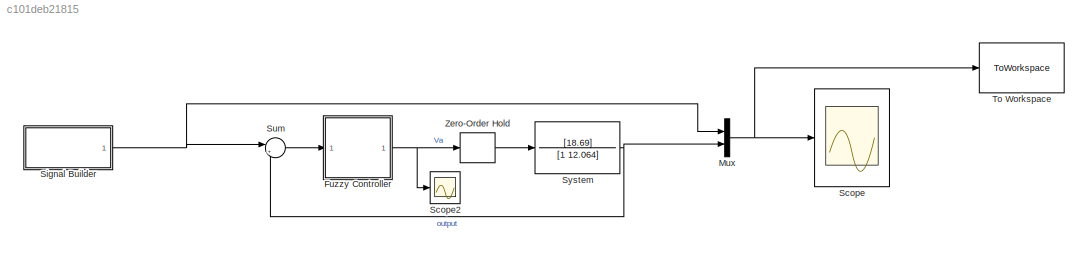
MODEL slx_c101deb21815
KIND model
CONFIG AbsTol = auto
CONFIG EnableMultiTasking = on
CONFIG FixedStep = 0.01
CONFIG MaxStep = auto
CONFIG MinStep = auto
CONFIG RelTol = 1e-3
CONFIG SampleTimeConstraint = Unconstrained
CONFIG Solver = ode3
CONFIG SolverName = ode3
CONFIG StartTime = 0.0
CONFIG StopTime = 35
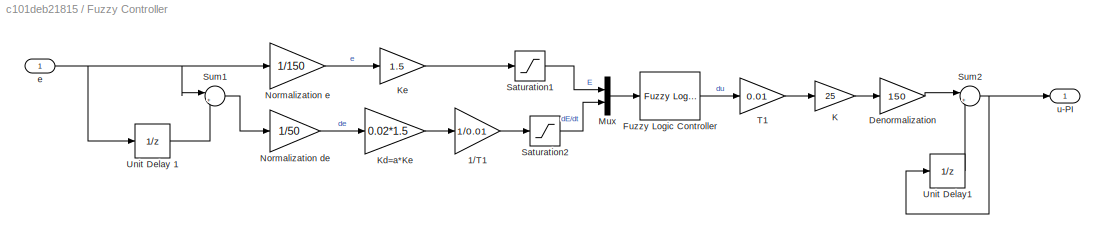
BLOCK [SubSystem] Fuzzy Controller
  Ports = [1, 1]
  RequestExecContextInheritance = off
BLOCK [Gain] Fuzzy Controller/1//T1
  Gain = 1/0.01
  OutDataTypeStr = Inherit: Inherit via internal rule
  ParamDataTypeStr = Inherit: Inherit via internal rule
  SaturateOnIntegerOverflow = off
BLOCK [Gain] Fuzzy Controller/Denormalization
  Gain = 150
  OutDataTypeStr = Inherit: Inherit via internal rule
  ParamDataTypeStr = Inherit: Inherit via internal rule
  SaturateOnIntegerOverflow = off
BLOCK [Reference] Fuzzy Controller/Fuzzy Logic Controller  REF=fuzblock/Fuzzy Logic   (lib defined in mdl_858b3b3e7478)
Controller
  Ports = [1, 1]
  SourceBlock = fuzblock/Fuzzy Logic \nController
  SourceProductBaseCode = FL
  SourceProductName = Fuzzy Logic Toolbox
  SourceType = Fuzzy Inference System
BLOCK [Gain] Fuzzy Controller/K
  Gain = 25
  OutDataTypeStr = Inherit: Inherit via internal rule
  ParamDataTypeStr = Inherit: Inherit via internal rule
  SaturateOnIntegerOverflow = off
BLOCK [Gain] Fuzzy Controller/Kd=a*Ke
  Gain = 0.02*1.5
  OutDataTypeStr = Inherit: Inherit via internal rule
  ParamDataTypeStr = Inherit: Inherit via internal rule
  SaturateOnIntegerOverflow = off
BLOCK [Gain] Fuzzy Controller/Ke
  Gain = 1.5
  OutDataTypeStr = Inherit: Inherit via internal rule
  ParamDataTypeStr = Inherit: Inherit via internal rule
  SaturateOnIntegerOverflow = off
BLOCK [Mux] Fuzzy Controller/Mux
  DisplayOption = bar
  Inputs = 2
  Ports = [2, 1]
BLOCK [Gain] Fuzzy Controller/Normalization de
  Gain = 1/50
  OutDataTypeStr = Inherit: Inherit via internal rule
  ParamDataTypeStr = Inherit: Inherit via internal rule
  SaturateOnIntegerOverflow = off
BLOCK [Gain] Fuzzy Controller/Normalization e
  Gain = 1/150
  OutDataTypeStr = Inherit: Inherit via internal rule
  ParamDataTypeStr = Inherit: Inherit via internal rule
  SaturateOnIntegerOverflow = off
BLOCK [Saturate] Fuzzy Controller/Saturation1
  InputPortMap = u0
  LowerLimit = -1
  Ports = [1, 1]
  UpperLimit = 1
BLOCK [Saturate] Fuzzy Controller/Saturation2
  InputPortMap = u0
  LowerLimit = -1
  Ports = [1, 1]
  UpperLimit = 1
BLOCK [Sum] Fuzzy Controller/Sum1
  IconShape = round
  InputSameDT = off
  Inputs = |+-
  OutDataTypeStr = Inherit: Inherit via internal rule
  Ports = [2, 1]
  SaturateOnIntegerOverflow = off
BLOCK [Sum] Fuzzy Controller/Sum2
  IconShape = round
  InputSameDT = off
  Inputs = |++
  OutDataTypeStr = Inherit: Inherit via internal rule
  Ports = [2, 1]
  SaturateOnIntegerOverflow = off
BLOCK [Gain] Fuzzy Controller/T1
  Gain = 0.01
  OutDataTypeStr = Inherit: Inherit via internal rule
  ParamDataTypeStr = Inherit: Inherit via internal rule
  SaturateOnIntegerOverflow = off
BLOCK [UnitDelay] Fuzzy Controller/Unit Delay 1
  InputProcessing = Elements as channels (sample based)
  SampleTime = -1
BLOCK [UnitDelay] Fuzzy Controller/Unit Delay1
  InputProcessing = Elements as channels (sample based)
  SampleTime = -1
BLOCK [Inport] Fuzzy Controller/e
  IconDisplay = Port number
BLOCK [Outport] Fuzzy Controller/u-PI
  IconDisplay = Port number
BLOCK [Mux] Mux
  DisplayOption = bar
  Inputs = 2
  Ports = [2, 1]
BLOCK [Scope] Scope
  Floating = off
  NumInputPorts = 1
  Ports = [1]
  ScopeSpecificationString = Simulink.scopes.TimeScopeBlockCfg('CurrentConfiguration', extmgr.ConfigurationSet(extmgr.Configuration('Core','General UI',true),extmgr.Configuration('Core','Source UI',true),extmgr.Configuration('Sources','WiredSimulink',true,'DataLogging',true,'DataLoggingVariableName','ScopeData1','DataLoggingSaveFormat','StructureWithTime','DataLoggingDecimation','1','DataLoggingDecimateData',true),extmgr.Conf...<+2493ch>
BLOCK [Scope] Scope2
  Floating = off
  NumInputPorts = 1
  Ports = [1]
  ScopeSpecificationString = Simulink.scopes.TimeScopeBlockCfg('CurrentConfiguration', extmgr.ConfigurationSet(extmgr.Configuration('Core','General UI',true),extmgr.Configuration('Core','Source UI',true),extmgr.Configuration('Sources','WiredSimulink',true,'DataLoggingVariableName','ScopeData1'),extmgr.Configuration('Visuals','Time Domain',true,'SerializedDisplays',{struct('MinYLimReal','90.60926','MaxYLimReal','143.77845','YL...<+1761ch>
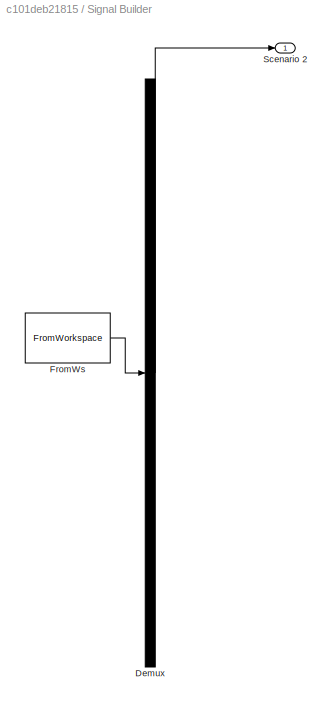
BLOCK [SubSystem] Signal Builder
  ClipboardFcn = sigbuilder_block('clipboard');
  CloseFcn = sigbuilder_block('close');
  ContinueFcn = sigbuilder_block('continue');
  CopyFcn = sigbuilder_block('copy');
  DeleteFcn = sigbuilder_block('delete');
  LoadFcn = sigbuilder_block('load');
  MaskHideContents = on
  ModelCloseFcn = sigbuilder_block('modelClose');
  NameChangeFcn = sigbuilder_block('namechange');
  OpenFcn = sigbuilder_block('open',[121.5 232.5 660.75 393.75 ]);
  PauseFcn = sigbuilder_block('pause');
  Ports = [0, 1]
  PreSaveFcn = sigbuilder_block('preSave');
  RequestExecContextInheritance = off
  StartFcn = sigbuilder_block('start');
  StopFcn = sigbuilder_block('stop');
  Tag = STV Subsys
BLOCK [Demux] Signal Builder/Demux
  Outputs = 1
  Ports = [1, 1]
  Tag = STV Demux
BLOCK [FromWorkspace] Signal Builder/FromWs
  SampleTime = 0
  Tag = STV FromWs
  VariableName = tuvar
  ZeroCross = on
BLOCK [Outport] Signal Builder/Scenario 2
  IconDisplay = Port number
  Tag = STV Outport
BLOCK [Sum] Sum
  IconShape = round
  InputSameDT = off
  Inputs = |+-
  OutDataTypeStr = Inherit: Inherit via internal rule
  Ports = [2, 1]
  SaturateOnIntegerOverflow = off
BLOCK [TransferFcn] System
  Denominator = [1 12.064]
  Numerator = [18.69]
BLOCK [ToWorkspace] To Workspace
  FixptAsFi = on
  MaxDataPoints = inf
  Ports = [1]
  SampleTime = -1
  Save2DSignal = 3-D array (concatenate along third dimension)
  SaveFormat = Timeseries
  VariableName = fuzzyResults
BLOCK [ZeroOrderHold] Zero-Order Hold
  SampleTime = 0.01
LINE Fuzzy Controller/1//T1:1 -> Fuzzy Controller/Saturation2:1
LINE Fuzzy Controller/Denormalization:1 -> Fuzzy Controller/Sum2:1
LINE Fuzzy Controller/Fuzzy Logic Controller:1 -> Fuzzy Controller/T1:1
LINE Fuzzy Controller/K:1 -> Fuzzy Controller/Denormalization:1
LINE Fuzzy Controller/Kd=a*Ke:1 -> Fuzzy Controller/1//T1:1
LINE Fuzzy Controller/Ke:1 -> Fuzzy Controller/Saturation1:1
LINE Fuzzy Controller/Mux:1 -> Fuzzy Controller/Fuzzy Logic Controller:1
LINE Fuzzy Controller/Normalization de:1 -> Fuzzy Controller/Kd=a*Ke:1
LINE Fuzzy Controller/Normalization e:1 -> Fuzzy Controller/Ke:1
LINE Fuzzy Controller/Saturation1:1 -> Fuzzy Controller/Mux:1
LINE Fuzzy Controller/Saturation2:1 -> Fuzzy Controller/Mux:2
LINE Fuzzy Controller/Sum1:1 -> Fuzzy Controller/Normalization de:1
NET Fuzzy Controller/Sum2:1 -> Fuzzy Controller/Unit Delay1:1, Fuzzy Controller/u-PI:1
LINE Fuzzy Controller/T1:1 -> Fuzzy Controller/K:1
LINE Fuzzy Controller/Unit Delay 1:1 -> Fuzzy Controller/Sum1:2
LINE Fuzzy Controller/Unit Delay1:1 -> Fuzzy Controller/Sum2:2
NET Fuzzy Controller/e:1 -> Fuzzy Controller/Normalization e:1, Fuzzy Controller/Sum1:1, Fuzzy Controller/Unit Delay 1:1
NET Fuzzy Controller:1 -> Scope2:1, Zero-Order Hold:1
NET Mux:1 -> Scope:1, To Workspace:1
NET Signal Builder:1 -> Mux:1, Sum:1
LINE Sum:1 -> Fuzzy Controller:1
NET System:1 -> Mux:2, Sum:2
LINE Zero-Order Hold:1 -> System:1
note: NET lines group one-source signal fan-out (src -> all destinations, sorted); 1:1 wires keep LINE
